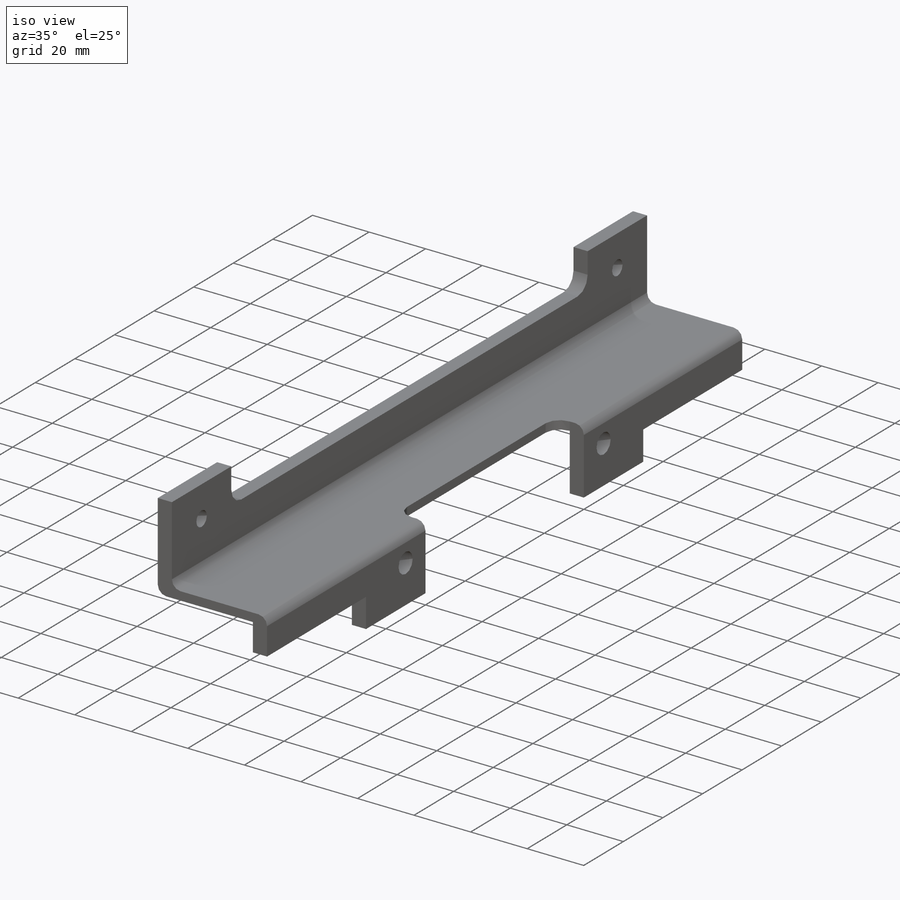
[diagram: iso view]
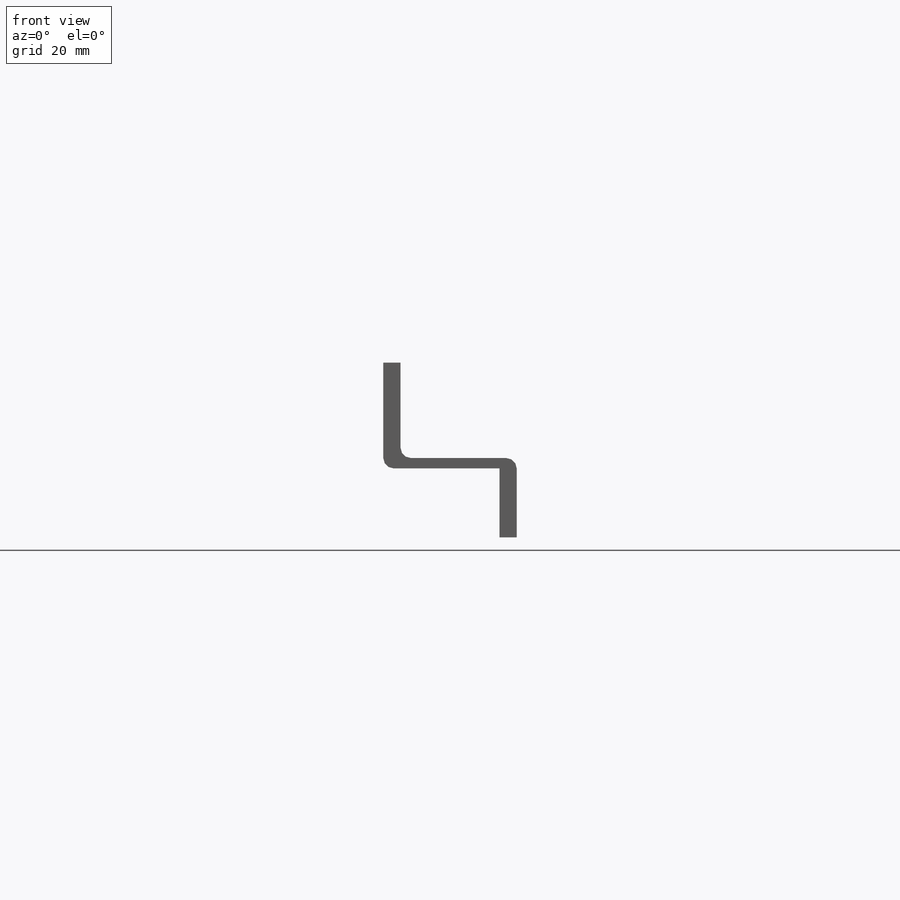
[diagram: front view]
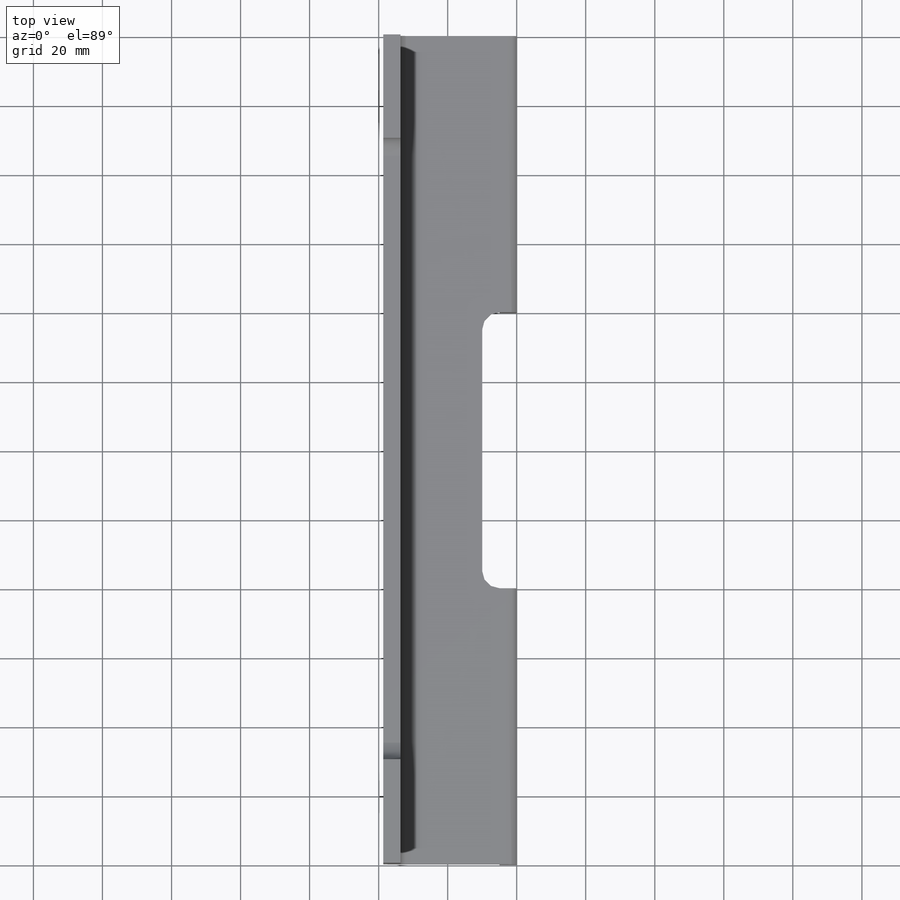
[diagram: top view]
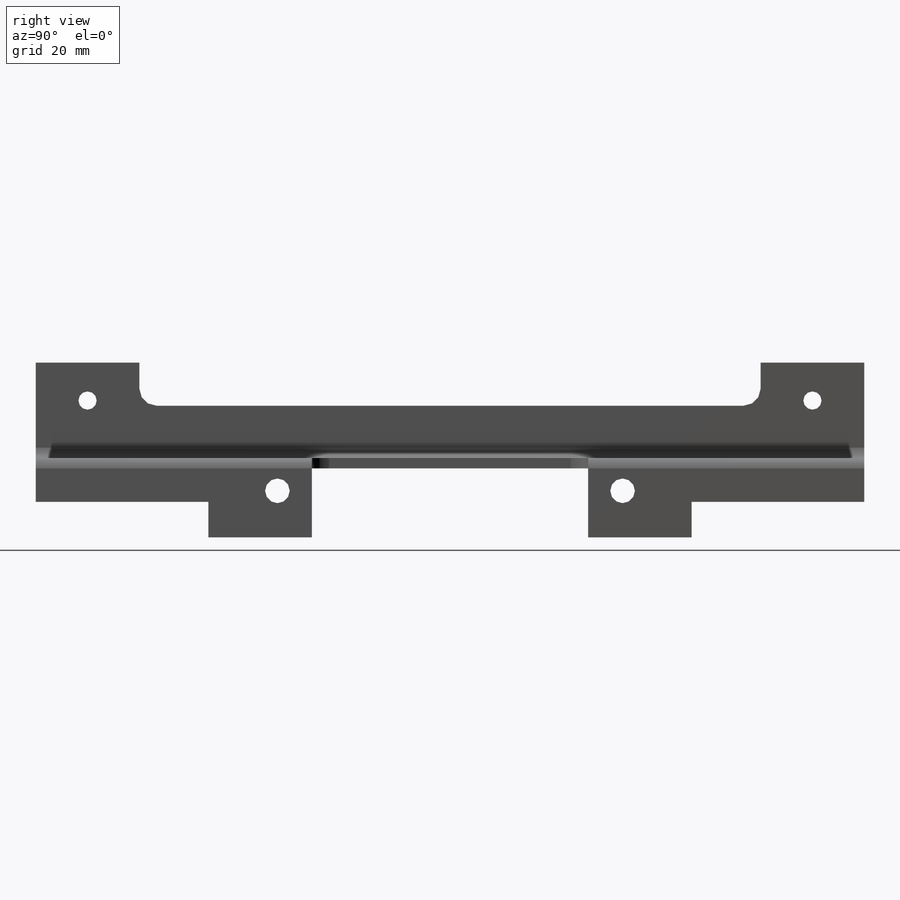
[diagram: right view]
SOLIDWORKS PART (.sldprt)
format: sldprt  version: not decoded by parser v0  size: 462,848 bytes
history: native  units: mm
features: sketch x14, cut_extrude x8, fillet x3, extrude x2, material x1, hole x1 (+11 scaffold rows collapsed)
feature tree (40):
  scaffold x11  (default folders/planes/origin — collapsed)
  material  "6061-T6 Al"
  sketch  "Sketch1"  dims[c1.D1=50.8mm c1.D2=50.8mm c2.D1=240.0mm c2.D5=6.35mm c2.D6=1.0mm c2.D7=1.5mm]
  fillet  "Fillet1"  Radius=3mm
  sketch  "Sketch3"  dims[D1=32.0mm D2=35.0mm D3=5.0mm D4=300.0mm]
  cut_extrude  "Extrude2"  [1 undecoded]
  sketch  "Sketch7"  dims[D1=34.0mm D2=40.0mm D3=5.0mm D4=300.0mm]
  cut_extrude  "Extrude4"  [1 undecoded]
  sketch  "Sketch10"  dims[c1.D6=5.0mm c1.D1=30.0mm c1.D2=30.0mm c1.D3=12.5mm c1.D4=30.0mm c1.D5=21.5mm c2.D2=30.0mm]
  cut_extrude  "Extrude5"  [1 undecoded]
  sketch  "Sketch11"  dims[c1.D1=4.5mm c1.D7=2.0mm c1.D2=15.0mm c1.D3=15.0mm c1.D4=11.0mm c1.D5=2.25mm c1.D6=2.25mm c2.D7=4.5mm]
  hole  "Tapped Hole for #8-32 Helicoil"  Diameter=4.3942mm Depth=6.35mm
  sketch  "3DSketch3"
  sketch  "Sketch32"  dims[hole-wizard template sketch: 42 standard entries collapsed; hole parameters kept: c12.Thru Tap Drill Depth=6.35mm c12.Thread Major Dia.=~5.27558mm c12.Thread Depth=5.08mm]
  sketch  "Sketch20"
  cut_extrude  "Extrude12"  Depth=1.35mm
  sketch  "Sketch21"
  cut_extrude  "Extrude13"  Depth=3.35mm
  sketch  "Sketch22"
  extrude  "Extrude14"  Depth=3mm
  sketch  "Sketch23"  dims[D1=20.0mm D2=5.0mm]
  extrude  "Extrude15"  [1 undecoded]
  sketch  "Sketch24"  dims[D1=7.1374mm D2=70.0mm D3=100.0mm D4=6.5mm D5=13.5mm]
  cut_extrude  "Extrude16"  [1 undecoded]
  sketch  "Sketch25"  dims[c1.D2=7.0mm c1.D1=10.0mm c2.D2=10.0mm c2.D3=10.0mm]
  cut_extrude  "Extrude17"  Depth=10mm
  fillet  "Fillet4"  Radius=5mm
  sketch  "Sketch31"  dims[D1=50.0mm D2=50.0mm D3=12.7mm D4=12.7mm]
  cut_extrude  "Extrude23"  [1 undecoded]
  fillet  "Fillet5"  Radius=3mm
decode coverage: 18 of 28 modeling features carry decoded parameters
note: ~ marks probable driven/reference dimensions
note: 6 parameter values undecoded
summary: no parameter record found for 6 features
note: suppression state not decoded; provenance and decode notes live in map.json
